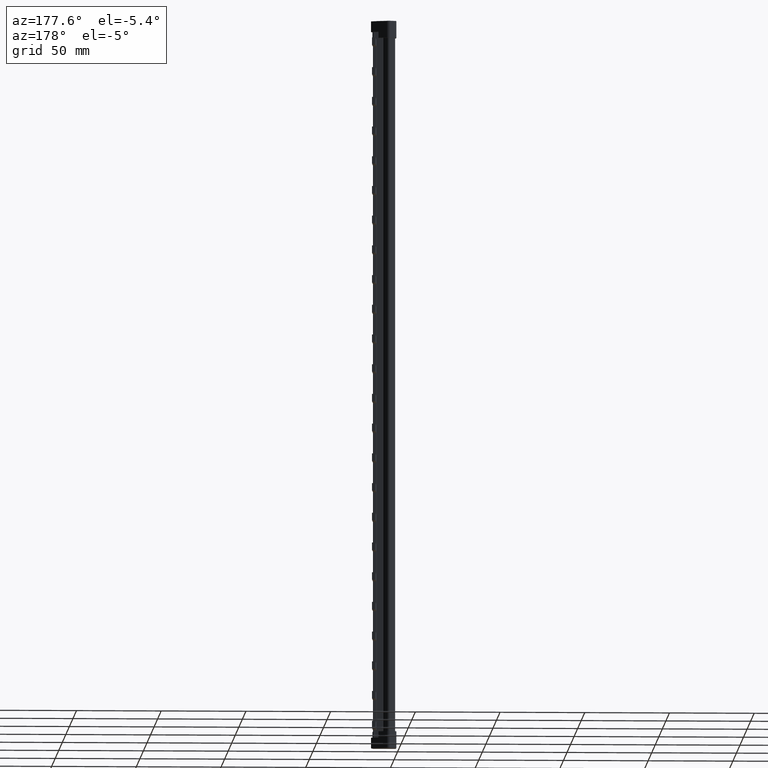
[diagram: clean part render]
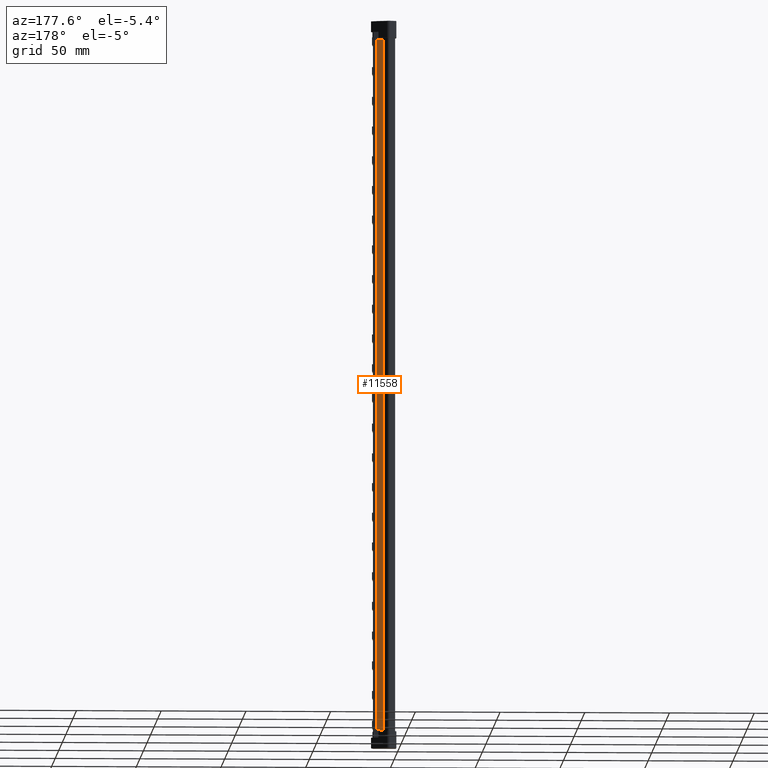
[diagram: same view with one face highlighted and labeled with its STEP entity id]
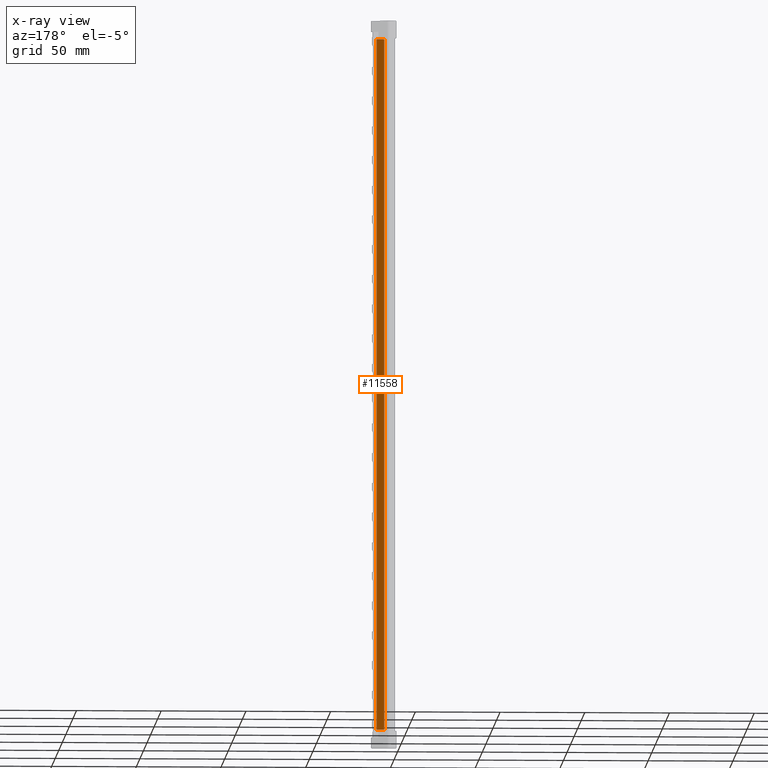
[diagram: x-ray of the same camera — body ghosted, the highlighted face saturated]
A machine part, auxiliary view. The second image highlights one B-rep face of the part: STEP entity #11558.
The next image is the same camera in x-ray: the body ghosted, the highlighted face saturated — about 0% of this face is hidden behind the body in this view.
In plain terms, the highlighted planar face has unit normal (-0, -1, 0).
Its self-contained STEP definition (entity closure, byte-faithful):
#1071 = CARTESIAN_POINT ( 'NONE',  ( 10.37430495582721900, 3.100000585347644200, 209.0000000000000000 ) ) ;
#1096 = CARTESIAN_POINT ( 'NONE',  ( 10.37430495582721900, 3.100000585347644200, -199.9999999999999100 ) ) ;
#1120 = CARTESIAN_POINT ( 'NONE',  ( 5.839261004356521000, 3.100000585347643800, -199.9999999999999100 ) ) ;
#1620 = CARTESIAN_POINT ( 'NONE',  ( 5.839261004356521800, 3.100000585347644200, 209.0000000000000300 ) ) ;
#4798 = EDGE_CURVE ( 'NONE', #30838, #30831, #19605, .T. ) ;
#4803 = EDGE_CURVE ( 'NONE', #30836, #30777, #19578, .T. ) ;
#11255 = EDGE_CURVE ( 'NONE', #30777, #30838, #35979, .T. ) ;
#11265 = EDGE_CURVE ( 'NONE', #30831, #30836, #36031, .T. ) ;
#11558 = ADVANCED_FACE ( 'NONE', ( #14674 ), #14670, .F. ) ;
#14670 = PLANE ( 'NONE',  #30068 ) ;
#14671 = DIRECTION ( 'NONE',  ( 0.0000000000000000000, -2.593268936129210100E-023, -1.000000000000000000 ) ) ;
#14674 = FACE_OUTER_BOUND ( 'NONE', #32867, .T. ) ;
#14686 = CARTESIAN_POINT ( 'NONE',  ( 0.5999928904455424900, 3.100000585347644200, 207.9000000000000100 ) ) ;
#14698 = DIRECTION ( 'NONE',  ( -4.379063324521068500E-047, -1.000000000000000000, 2.593268936129210100E-023 ) ) ;
#17792 = ORIENTED_EDGE ( 'NONE', *, *, #4798, .F. ) ;
#17922 = ORIENTED_EDGE ( 'NONE', *, *, #11255, .F. ) ;
#17924 = ORIENTED_EDGE ( 'NONE', *, *, #4803, .F. ) ;
#17927 = ORIENTED_EDGE ( 'NONE', *, *, #11265, .F. ) ;
#19578 = LINE ( 'NONE', #19607, #34985 ) ;
#19589 = DIRECTION ( 'NONE',  ( -1.000000000000000000, 4.379063324521068500E-047, -1.135608888882319300E-069 ) ) ;
#19599 = CARTESIAN_POINT ( 'NONE',  ( 0.5999928904455424900, 3.100000585347644200, -199.9999999999999100 ) ) ;
#19600 = DIRECTION ( 'NONE',  ( 1.000000000000000000, -4.379063324521068500E-047, 1.135608888882319300E-069 ) ) ;
#19605 = LINE ( 'NONE', #19599, #34996 ) ;
#19607 = CARTESIAN_POINT ( 'NONE',  ( 0.5999928904455424900, 3.100000585347644200, 209.0000000000000000 ) ) ;
#29845 = VECTOR ( 'NONE', #36032, 1000.000000000000000 ) ;
#29875 = VECTOR ( 'NONE', #35991, 1000.000000000000000 ) ;
#30068 = AXIS2_PLACEMENT_3D ( 'NONE', #14686, #14698, #14671 ) ;
#30777 = VERTEX_POINT ( 'NONE', #1620 ) ;
#30831 = VERTEX_POINT ( 'NONE', #1096 ) ;
#30836 = VERTEX_POINT ( 'NONE', #1071 ) ;
#30838 = VERTEX_POINT ( 'NONE', #1120 ) ;
#32867 = EDGE_LOOP ( 'NONE', ( #17792, #17922, #17924, #17927 ) ) ;
#34985 = VECTOR ( 'NONE', #19589, 1000.000000000000000 ) ;
#34996 = VECTOR ( 'NONE', #19600, 1000.000000000000000 ) ;
#35979 = LINE ( 'NONE', #35987, #29875 ) ;
#35987 = CARTESIAN_POINT ( 'NONE',  ( 5.839261004356521800, 3.100000585347644200, 219.0000000000000000 ) ) ;
#35991 = DIRECTION ( 'NONE',  ( -1.174935236590071000E-018, -5.041208906165829300E-019, -1.000000000000000000 ) ) ;
#36031 = LINE ( 'NONE', #36047, #29845 ) ;
#36032 = DIRECTION ( 'NONE',  ( -0.0000000000000000000, 2.593268936129210100E-023, 1.000000000000000000 ) ) ;
#36047 = CARTESIAN_POINT ( 'NONE',  ( 10.37430495582721900, 3.100000585347644200, 207.9000000000000100 ) ) ;